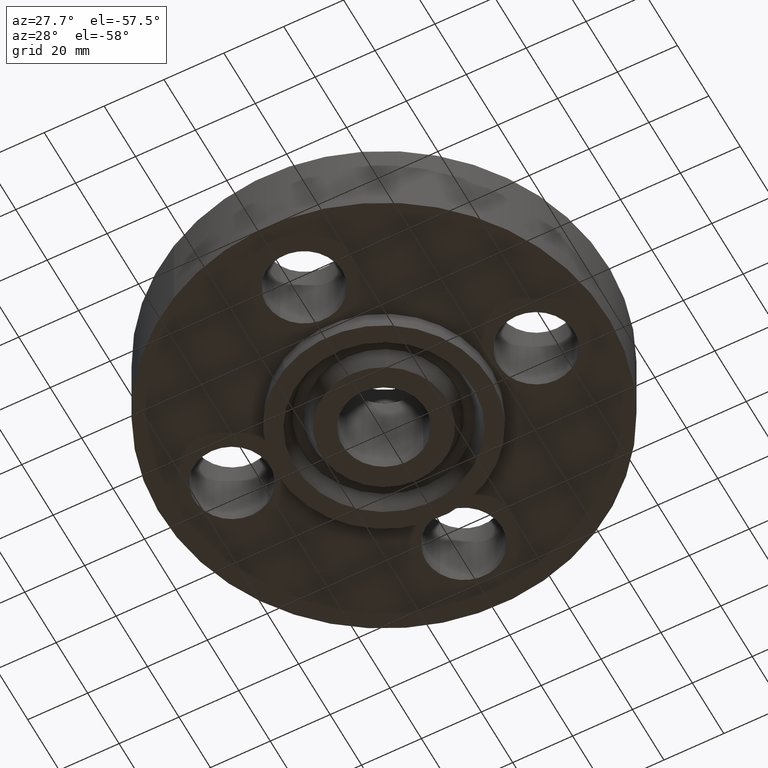
[diagram: clean part render]
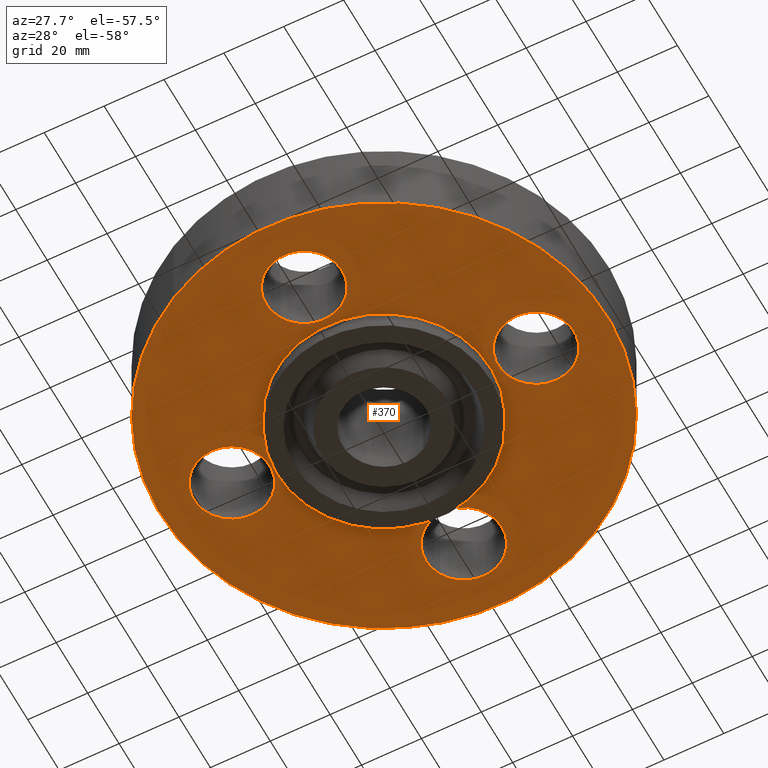
[diagram: same view with one face highlighted and labeled with its STEP entity id]
A machine part, auxiliary view. The second image highlights one B-rep face of the part: STEP entity #370.
In plain terms, the highlighted planar face has unit normal (0, 0, -1).
Its self-contained STEP definition (entity closure, byte-faithful):
#242=AXIS2_PLACEMENT_3D('Circle Axis2P3D',#240,#241,$) ;
#261=AXIS2_PLACEMENT_3D('Circle Axis2P3D',#259,#260,$) ;
#274=AXIS2_PLACEMENT_3D('Plane Axis2P3D',#271,#272,#273) ;
#278=AXIS2_PLACEMENT_3D('Circle Axis2P3D',#276,#277,$) ;
#287=AXIS2_PLACEMENT_3D('Circle Axis2P3D',#285,#286,$) ;
#296=AXIS2_PLACEMENT_3D('Circle Axis2P3D',#294,#295,$) ;
#305=AXIS2_PLACEMENT_3D('Circle Axis2P3D',#303,#304,$) ;
#318=AXIS2_PLACEMENT_3D('Circle Axis2P3D',#316,#317,$) ;
#327=AXIS2_PLACEMENT_3D('Circle Axis2P3D',#325,#326,$) ;
#336=AXIS2_PLACEMENT_3D('Circle Axis2P3D',#334,#335,$) ;
#345=AXIS2_PLACEMENT_3D('Circle Axis2P3D',#343,#344,$) ;
#354=AXIS2_PLACEMENT_3D('Circle Axis2P3D',#352,#353,$) ;
#363=AXIS2_PLACEMENT_3D('Circle Axis2P3D',#361,#362,$) ;
#237=CARTESIAN_POINT('Vertex',(-0.67431202005,-1.2343198733,0.)) ;
#240=CARTESIAN_POINT('Axis2P3D Location',(0.,0.,1.39870617276E-016)) ;
#244=CARTESIAN_POINT('Vertex',(0.67431202005,1.2343198733,0.)) ;
#259=CARTESIAN_POINT('Axis2P3D Location',(0.,0.,1.39870617276E-016)) ;
#271=CARTESIAN_POINT('Axis2P3D Location',(0.,1.40650000001,0.)) ;
#276=CARTESIAN_POINT('Axis2P3D Location',(0.,0.,0.)) ;
#280=CARTESIAN_POINT('Vertex',(-1.4095110835,-2.58009273197,2.79741234551E-016)) ;
#282=CARTESIAN_POINT('Vertex',(1.4095110835,2.58009273197,2.79741234551E-016)) ;
#285=CARTESIAN_POINT('Axis2P3D Location',(0.,0.,0.)) ;
#294=CARTESIAN_POINT('Axis2P3D Location',(0.,2.00000000001,0.)) ;
#298=CARTESIAN_POINT('Vertex',(0.438791280947,1.7602872307,0.)) ;
#300=CARTESIAN_POINT('Vertex',(-0.438791280947,2.23971276931,0.)) ;
#303=CARTESIAN_POINT('Axis2P3D Location',(5.24514814784E-017,2.00000000001,0.)) ;
#316=CARTESIAN_POINT('Axis2P3D Location',(2.00000000001,0.,0.)) ;
#320=CARTESIAN_POINT('Vertex',(2.23971276931,0.438791280947,0.)) ;
#322=CARTESIAN_POINT('Vertex',(1.7602872307,-0.438791280947,0.)) ;
#325=CARTESIAN_POINT('Axis2P3D Location',(2.00000000001,2.79741234551E-016,0.)) ;
#334=CARTESIAN_POINT('Axis2P3D Location',(2.44773580232E-016,-2.00000000001,0.)) ;
#338=CARTESIAN_POINT('Vertex',(0.438791280947,-2.23971276931,0.)) ;
#340=CARTESIAN_POINT('Vertex',(-0.438791280947,-1.7602872307,0.)) ;
#343=CARTESIAN_POINT('Axis2P3D Location',(1.39870617276E-016,-2.00000000001,0.)) ;
#352=CARTESIAN_POINT('Axis2P3D Location',(-2.00000000001,-5.59482469102E-016,0.)) ;
#356=CARTESIAN_POINT('Vertex',(-2.23971276931,-0.438791280947,0.)) ;
#358=CARTESIAN_POINT('Vertex',(-1.7602872307,0.438791280947,0.)) ;
#361=CARTESIAN_POINT('Axis2P3D Location',(-2.00000000001,-5.59482469102E-016,0.)) ;
#241=DIRECTION('Axis2P3D Direction',(0.,0.,-0.0393700787402)) ;
#260=DIRECTION('Axis2P3D Direction',(0.,0.,-0.0393700787402)) ;
#272=DIRECTION('Axis2P3D Direction',(0.,0.,-0.0393700787402)) ;
#273=DIRECTION('Axis2P3D XDirection',(0.0393700787402,0.,0.)) ;
#277=DIRECTION('Axis2P3D Direction',(0.,0.,-0.0393700787402)) ;
#286=DIRECTION('Axis2P3D Direction',(0.,0.,-0.0393700787402)) ;
#295=DIRECTION('Axis2P3D Direction',(0.,0.,-0.0393700787402)) ;
#304=DIRECTION('Axis2P3D Direction',(0.,0.,-0.0393700787402)) ;
#317=DIRECTION('Axis2P3D Direction',(0.,0.,-0.0393700787402)) ;
#326=DIRECTION('Axis2P3D Direction',(0.,0.,-0.0393700787402)) ;
#335=DIRECTION('Axis2P3D Direction',(0.,0.,-0.0393700787402)) ;
#344=DIRECTION('Axis2P3D Direction',(0.,0.,-0.0393700787402)) ;
#353=DIRECTION('Axis2P3D Direction',(0.,0.,-0.0393700787402)) ;
#362=DIRECTION('Axis2P3D Direction',(0.,0.,-0.0393700787402)) ;
#291=ORIENTED_EDGE('',*,*,#284,.T.) ;
#292=ORIENTED_EDGE('',*,*,#289,.T.) ;
#309=ORIENTED_EDGE('',*,*,#302,.F.) ;
#310=ORIENTED_EDGE('',*,*,#307,.F.) ;
#313=ORIENTED_EDGE('',*,*,#263,.F.) ;
#314=ORIENTED_EDGE('',*,*,#246,.F.) ;
#331=ORIENTED_EDGE('',*,*,#324,.F.) ;
#332=ORIENTED_EDGE('',*,*,#329,.F.) ;
#349=ORIENTED_EDGE('',*,*,#342,.F.) ;
#350=ORIENTED_EDGE('',*,*,#347,.F.) ;
#367=ORIENTED_EDGE('',*,*,#360,.F.) ;
#368=ORIENTED_EDGE('',*,*,#365,.F.) ;
#311=FACE_BOUND('',#308,.T.) ;
#315=FACE_BOUND('',#312,.T.) ;
#333=FACE_BOUND('',#330,.T.) ;
#351=FACE_BOUND('',#348,.T.) ;
#369=FACE_BOUND('',#366,.T.) ;
#370=ADVANCED_FACE('PartBody',(#293,#311,#315,#333,#351,#369),#275,.T.) ;
#243=CIRCLE('generated circle',#242,1.40650000001) ;
#262=CIRCLE('generated circle',#261,1.40650000001) ;
#279=CIRCLE('generated circle',#278,2.94000000001) ;
#288=CIRCLE('generated circle',#287,2.94000000001) ;
#297=CIRCLE('generated circle',#296,0.500000000002) ;
#306=CIRCLE('generated circle',#305,0.500000000002) ;
#319=CIRCLE('generated circle',#318,0.500000000002) ;
#328=CIRCLE('generated circle',#327,0.500000000002) ;
#337=CIRCLE('generated circle',#336,0.500000000002) ;
#346=CIRCLE('generated circle',#345,0.500000000002) ;
#355=CIRCLE('generated circle',#354,0.500000000002) ;
#364=CIRCLE('generated circle',#363,0.500000000002) ;
#246=EDGE_CURVE('',#238,#245,#243,.T.) ;
#263=EDGE_CURVE('',#245,#238,#262,.T.) ;
#284=EDGE_CURVE('',#281,#283,#279,.T.) ;
#289=EDGE_CURVE('',#283,#281,#288,.T.) ;
#302=EDGE_CURVE('',#299,#301,#297,.T.) ;
#307=EDGE_CURVE('',#301,#299,#306,.T.) ;
#324=EDGE_CURVE('',#321,#323,#319,.T.) ;
#329=EDGE_CURVE('',#323,#321,#328,.T.) ;
#342=EDGE_CURVE('',#339,#341,#337,.T.) ;
#347=EDGE_CURVE('',#341,#339,#346,.T.) ;
#360=EDGE_CURVE('',#357,#359,#355,.T.) ;
#365=EDGE_CURVE('',#359,#357,#364,.T.) ;
#290=EDGE_LOOP('',(#291,#292)) ;
#308=EDGE_LOOP('',(#309,#310)) ;
#312=EDGE_LOOP('',(#313,#314)) ;
#330=EDGE_LOOP('',(#331,#332)) ;
#348=EDGE_LOOP('',(#349,#350)) ;
#366=EDGE_LOOP('',(#367,#368)) ;
#293=FACE_OUTER_BOUND('',#290,.T.) ;
#275=PLANE('',#274) ;
#238=VERTEX_POINT('',#237) ;
#245=VERTEX_POINT('',#244) ;
#281=VERTEX_POINT('',#280) ;
#283=VERTEX_POINT('',#282) ;
#299=VERTEX_POINT('',#298) ;
#301=VERTEX_POINT('',#300) ;
#321=VERTEX_POINT('',#320) ;
#323=VERTEX_POINT('',#322) ;
#339=VERTEX_POINT('',#338) ;
#341=VERTEX_POINT('',#340) ;
#357=VERTEX_POINT('',#356) ;
#359=VERTEX_POINT('',#358) ;